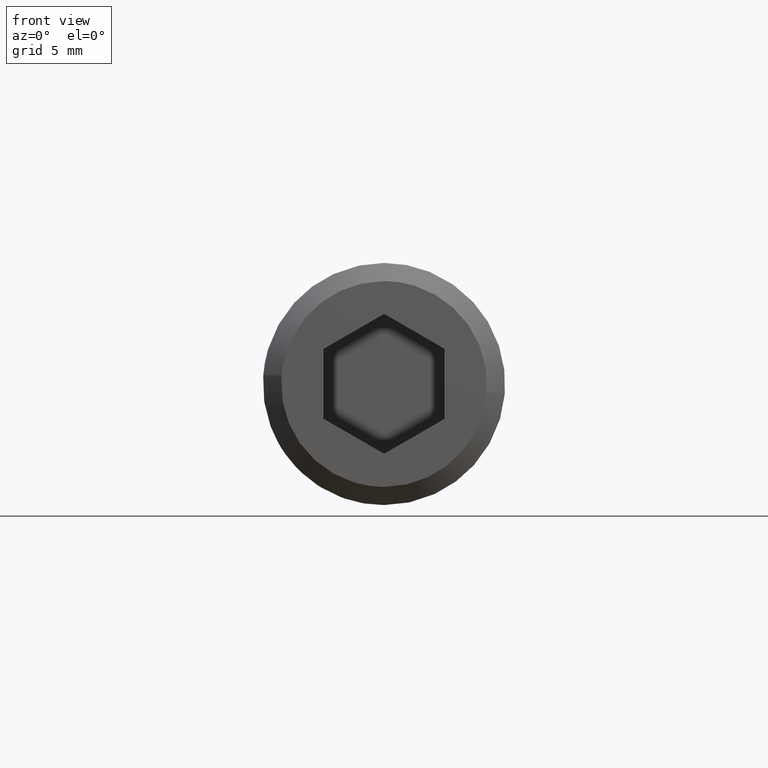
[diagram: clean part render]
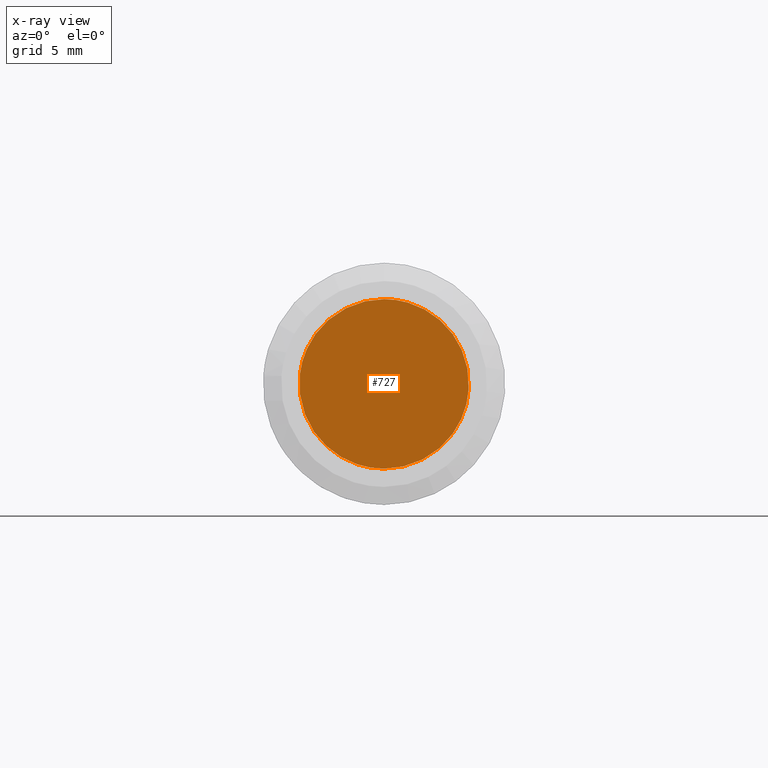
[diagram: x-ray — body ghosted, one internal face saturated and labeled with its STEP entity id]
A machine part, front view, then the same camera in x-ray: the body is ghosted and one INTERNAL B-rep face — a face not visible from any outside direction — is saturated and labeled: STEP entity #727.
In plain terms, the highlighted face is a freeform B-spline surface patch.
Its self-contained STEP definition (entity closure, byte-faithful):
#66=CARTESIAN_POINT('',(-3.475533838674169,-5.000000000000036,0.413115645083919));
#67=VERTEX_POINT('',#66);
#68=CARTESIAN_POINT('',(0.0,-5.0,-3.500000000000000));
#69=VERTEX_POINT('',#68);
#70=CARTESIAN_POINT('',(-3.475533838674170,-5.000000000000035,0.413115645083919));
#71=CARTESIAN_POINT('',(-3.500000000000000,-5.0,0.207282308599489));
#72=CARTESIAN_POINT('',(-3.500000000000000,-5.0,0.0));
#73=CARTESIAN_POINT('',(-3.500000000000000,-4.999999999999999,-3.500000000000000));
#74=CARTESIAN_POINT('',(0.0,-5.0,-3.500000000000000));
#82=(BOUNDED_CURVE()B_SPLINE_CURVE(2,(#70,#71,#72,#73,#74),.UNSPECIFIED.,.F.,.U.)B_SPLINE_CURVE_WITH_KNOTS((3,2,3),(0.229562676590638,0.250000000000000,0.500000000000000),.UNSPECIFIED.)CURVE()GEOMETRIC_REPRESENTATION_ITEM()RATIONAL_B_SPLINE_CURVE((0.956027152223570,0.976056186250801,1.0,0.707106781186547,1.0))REPRESENTATION_ITEM(''));
#83=EDGE_CURVE('',#67,#69,#82,.T.);
#85=CARTESIAN_POINT('',(3.493472099492551,-4.999999999999960,-0.213664901287368));
#86=VERTEX_POINT('',#85);
#87=CARTESIAN_POINT('',(0.0,-5.0,-3.500000000000000));
#88=CARTESIAN_POINT('',(3.292475943103280,-5.0,-3.500000000000000));
#89=CARTESIAN_POINT('',(3.493472099492551,-4.999999999999960,-0.213664901287368));
#97=(BOUNDED_CURVE()B_SPLINE_CURVE(2,(#87,#88,#89),.UNSPECIFIED.,.F.,.U.)B_SPLINE_CURVE_WITH_KNOTS((3,3),(0.500000000000000,0.739333208560145),.UNSPECIFIED.)CURVE()GEOMETRIC_REPRESENTATION_ITEM()RATIONAL_B_SPLINE_CURVE((1.0,0.719603704703471,0.976072569580511))REPRESENTATION_ITEM(''));
#98=EDGE_CURVE('',#69,#86,#97,.T.);
#165=CARTESIAN_POINT('',(0.0,-5.0,3.500000000000000));
#166=VERTEX_POINT('',#165);
#167=CARTESIAN_POINT('',(0.0,-5.0,3.500000000000000));
#168=CARTESIAN_POINT('',(-3.108614602445917,-5.000000000000001,3.500000000000000));
#169=CARTESIAN_POINT('',(-3.475533838674170,-5.000000000000035,0.413115645083919));
#177=(BOUNDED_CURVE()B_SPLINE_CURVE(2,(#167,#168,#169),.UNSPECIFIED.,.F.,.U.)B_SPLINE_CURVE_WITH_KNOTS((3,3),(0.0,0.229562676590638),.UNSPECIFIED.)CURVE()GEOMETRIC_REPRESENTATION_ITEM()RATIONAL_B_SPLINE_CURVE((1.0,0.731050594935746,0.956027152223570))REPRESENTATION_ITEM(''));
#178=EDGE_CURVE('',#166,#67,#177,.T.);
#212=CARTESIAN_POINT('',(3.493472099492551,-4.999999999999960,-0.213664901287368));
#213=CARTESIAN_POINT('',(3.500000000000000,-5.000000000000001,-0.106932171011368));
#214=CARTESIAN_POINT('',(3.500000000000000,-5.0,0.0));
#215=CARTESIAN_POINT('',(3.500000000000000,-4.999999999999999,3.500000000000000));
#216=CARTESIAN_POINT('',(0.0,-5.0,3.500000000000000));
#224=(BOUNDED_CURVE()B_SPLINE_CURVE(2,(#212,#213,#214,#215,#216),.UNSPECIFIED.,.F.,.U.)B_SPLINE_CURVE_WITH_KNOTS((3,2,3),(0.739333208560145,0.750000000000000,1.0),.UNSPECIFIED.)CURVE()GEOMETRIC_REPRESENTATION_ITEM()RATIONAL_B_SPLINE_CURVE((0.976072569580511,0.987503076483076,1.0,0.707106781186547,1.0))REPRESENTATION_ITEM(''));
#225=EDGE_CURVE('',#86,#166,#224,.T.);
#716=CARTESIAN_POINT('',(-3.849586525874266,-5.0,3.849649986432642));
#717=CARTESIAN_POINT('',(3.849564808921942,-5.0,3.849649986432642));
#718=CARTESIAN_POINT('',(-3.849586525874266,-5.0,-3.849650174187273));
#719=CARTESIAN_POINT('',(3.849564808921942,-5.0,-3.849650174187273));
#720=B_SPLINE_SURFACE_WITH_KNOTS('',1,1,((#716,#718),(#717,#719)),.UNSPECIFIED.,.F.,.F.,.U.,(2,2),(2,2),(0.0,7.699151334796208),(0.0,7.699300160619915),.UNSPECIFIED.);
#721=ORIENTED_EDGE('',*,*,#225,.F.);
#722=ORIENTED_EDGE('',*,*,#98,.F.);
#723=ORIENTED_EDGE('',*,*,#83,.F.);
#724=ORIENTED_EDGE('',*,*,#178,.F.);
#725=EDGE_LOOP('',(#721,#722,#723,#724));
#726=FACE_OUTER_BOUND('',#725,.T.);
#727=ADVANCED_FACE('',(#726),#720,.T.);